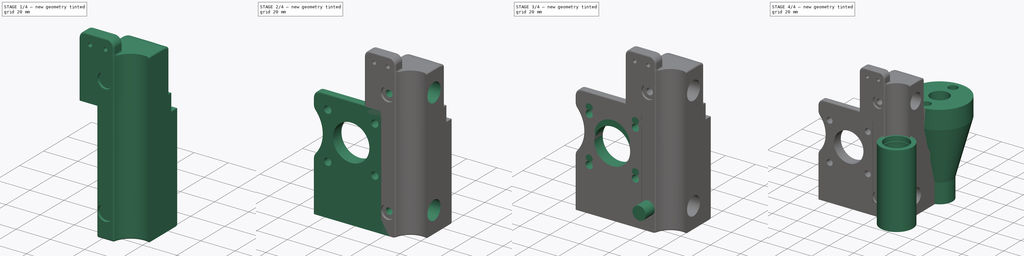
[diagram: build sequence overview — one tinted view per stage of 4, left to right]
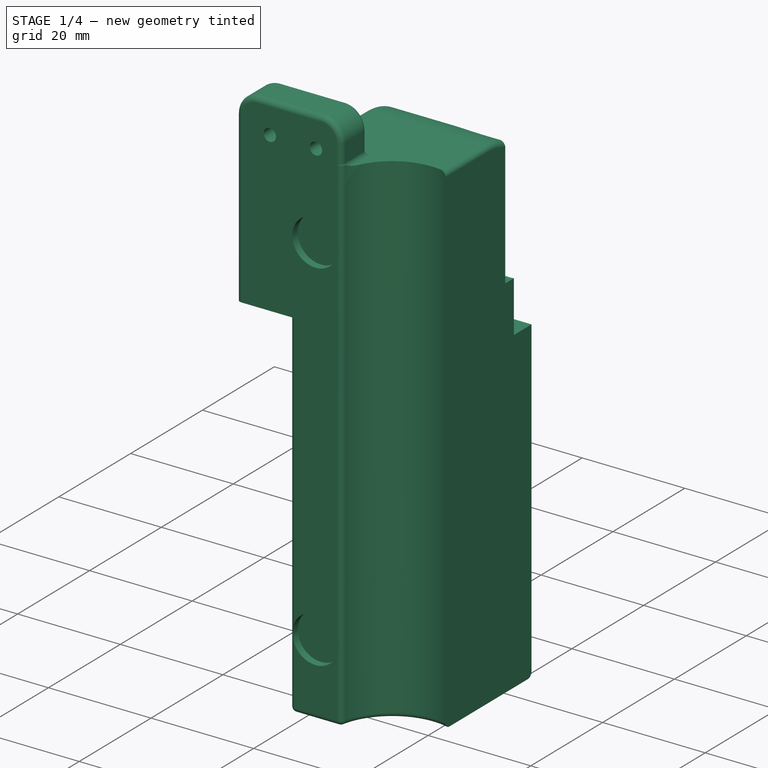
[diagram: stage 1 of 4 — iso view after this stage's code; geometry added in this stage tinted green]
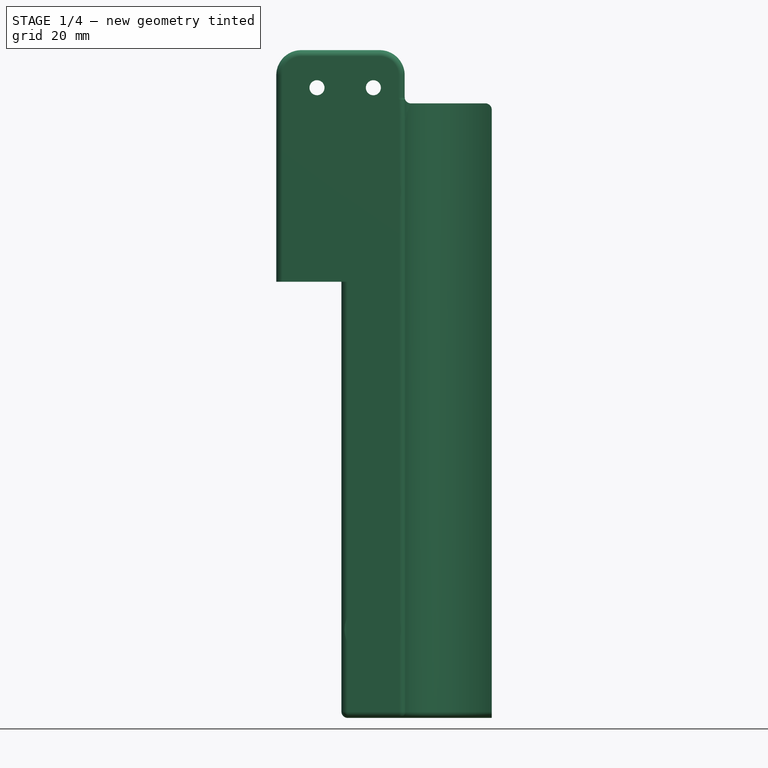
[diagram: stage 1 of 4 — front view after this stage's code; geometry added in this stage tinted green]
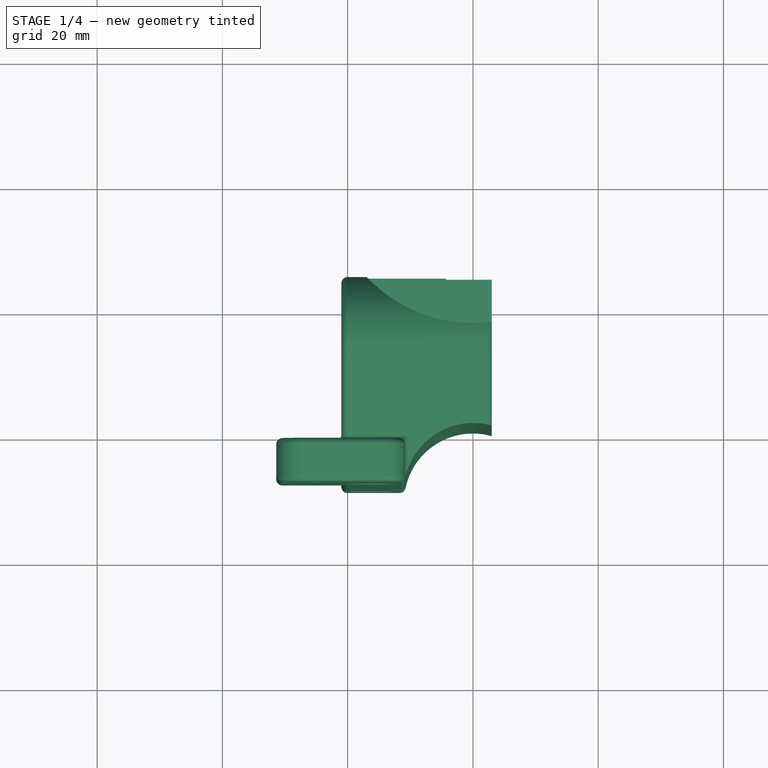
[diagram: stage 1 of 4 — top view after this stage's code; geometry added in this stage tinted green]
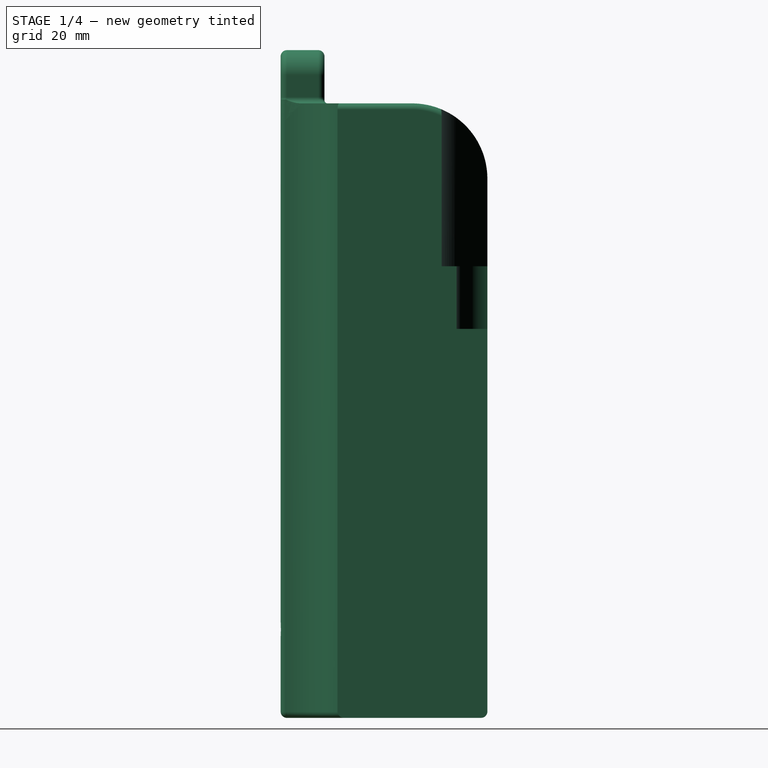
[diagram: stage 1 of 4 — right view after this stage's code; geometry added in this stage tinted green]
FCSTD DOCUMENT  (FreeCAD 0.16R5480 (Git))
Label: z_carriage_motor_v2.10
License: All rights reserved
LicenseURL: http://en.wikipedia.org/wiki/All_rights_reserved
objects: Sketcher::SketchObject×13, PartDesign::Pad×5, Part::FeaturePython×3, PartDesign::Pocket×3, Part::Cut×1
note: 33 computed .brp shape members not serialized (recipe doc carries the construction recipe); baked Part::Feature solids carry a one-line shape summary decoded from their .brp

FEATURE [Part::FeaturePython] carriage_motor_z_01  # a2plus imported part (geometry in sourceFile) (typed FeaturePython)
  Placement = pos=(3,-32,44.1) rot=(0.57735,-0.57735,-0.57735;2.0944rad)
  fixedPosition = false
  sourceFile = <userpath>/shared-j/devel/lulzbot/TAZ/Olive/production_parts/printed_parts/z_carriage_motor/carriage_motor_z.fcstd
  timeLastImport = 1460046477
  updateColors = true
FEATURE [Sketcher::SketchObject] Sketch004
  ExternalGeometry = -> [carriage_motor_z_01]
  Placement = pos=(3,-47,44.1) rot=(0.57735,-0.57735,0.57735;2.0944rad)
  Support = -> carriage_motor_z_01 [Face105]
  sketch-geometry (4):
    g0: Circle CenterX=40 CenterY=19 CenterZ=0 NormalX=0 NormalY=0 NormalZ=1 Radius=3.1
    g1: Circle CenterX=40 CenterY=19 CenterZ=0 NormalX=0 NormalY=0 NormalZ=1 Radius=2.2
    g2: Circle CenterX=-30 CenterY=19 CenterZ=0 NormalX=0 NormalY=0 NormalZ=1 Radius=2.2
    g3: Circle CenterX=-30 CenterY=19 CenterZ=0 NormalX=0 NormalY=0 NormalZ=1 Radius=3.1
  constraints (8):
    c: Coincident(g0,g-3)
    c: Coincident(g1,g0)
    c: Radius(g1) = 2.2
    c: Radius(g0) = 3.1
    c: Coincident(g2,g-4)
    c: Coincident(g3,g2)
    c: Equal(g1,g2)
    c: Equal(g0,g3)
FEATURE [Sketcher::SketchObject] Sketch005
  Placement = pos=(-21,-32,44.1) rot=(0.57735,-0.57735,-0.57735;2.0944rad)
  sketch-geometry (2):
    g0: Circle CenterX=0 CenterY=40 CenterZ=0 NormalX=0 NormalY=0 NormalZ=1 Radius=6.3
    g1: Circle CenterX=0 CenterY=-30 CenterZ=0 NormalX=0 NormalY=0 NormalZ=1 Radius=6.3
  constraints (1):
    c: Equal(g0,g1)
FEATURE [Sketcher::SketchObject] Sketch006
  ExternalGeometry = -> [carriage_motor_z_01]
  Placement = pos=(-21,-32,44.1) rot=(0.57735,-0.57735,-0.57735;2.0944rad)
  Support = -> carriage_motor_z_01 [Face6]
  sketch-geometry (2):
    g0: Circle CenterX=0 CenterY=40 CenterZ=0 NormalX=0 NormalY=0 NormalZ=1 Radius=7
    g1: Circle CenterX=0 CenterY=-30 CenterZ=0 NormalX=0 NormalY=0 NormalZ=1 Radius=7
  constraints (4):
    c: Equal(g1,g0)
    c: Radius(g0) = 7
    c: Coincident(g0,g-3)
    c: Coincident(g1,g-4)
FEATURE [Sketcher::SketchObject] Sketch007
  Placement = pos=(-21,-32,44.1) rot=(0.57735,-0.57735,-0.57735;2.0944rad)
  sketch-geometry (2):
    g0: Circle CenterX=0 CenterY=40 CenterZ=0 NormalX=0 NormalY=0 NormalZ=1 Radius=6.2
    g1: Circle CenterX=0 CenterY=-30 CenterZ=0 NormalX=0 NormalY=0 NormalZ=1 Radius=6.2
  constraints (2):
    c: Equal(g0,g1)
    c: Radius(g0) = 6.2
FEATURE [Sketcher::SketchObject] Sketch008
  Placement = pos=(-21,-32,44.1) rot=(0.57735,-0.57735,-0.57735;2.0944rad)
  Support = -> carriage_motor_z_01 [Face6]
FEATURE [Sketcher::SketchObject] Sketch009
  ExternalGeometry = -> [carriage_motor_z_01]
  Placement = pos=(3,-47,44.1) rot=(-0.57735,0.57735,-0.57735;4.18879rad)
  Support = -> carriage_motor_z_01 [Face105]
  sketch-geometry (2):
    g0: Circle CenterX=40 CenterY=19 CenterZ=0 NormalX=0 NormalY=0 NormalZ=1 Radius=3
    g1: Circle CenterX=-30 CenterY=19 CenterZ=0 NormalX=0 NormalY=0 NormalZ=1 Radius=3
  constraints (4):
    c: Coincident(g1,g-4)
    c: Coincident(g0,g-3)
    c: Radius(g0) = 3
    c: Equal(g0,g1)
FEATURE [PartDesign::Pad] Pad003
  Length = 10
  Length2 = 100
  Placement = pos=(3,-32,44.1) rot=(0.57735,-0.57735,-0.57735;2.0944rad)
  Reversed = true
  Sketch = -> Sketch009
  Type = 0
FEATURE [Sketcher::SketchObject] Sketch010
  ExternalGeometry = -> [Pad003]
  Placement = pos=(-21,-32,44.1) rot=(0.57735,-0.57735,-0.57735;2.0944rad)
  Support = -> Pad003 [Face6]
  sketch-geometry (2):
    g0: Circle CenterX=0 CenterY=-30 CenterZ=0 NormalX=0 NormalY=0 NormalZ=1 Radius=7
    g1: Circle CenterX=0 CenterY=40 CenterZ=0 NormalX=0 NormalY=0 NormalZ=1 Radius=7
  constraints (4):
    c: Coincident(g0,g-4)
    c: Coincident(g1,g-3)
    c: Radius(g1) = 7
    c: Equal(g0,g1)
FEATURE [PartDesign::Pad] Pad004
  Length = 24
  Length2 = 100
  Placement = pos=(3,-32,44.1) rot=(0.57735,-0.57735,-0.57735;2.0944rad)
  Reversed = true
  Sketch = -> Sketch010
  Type = 0
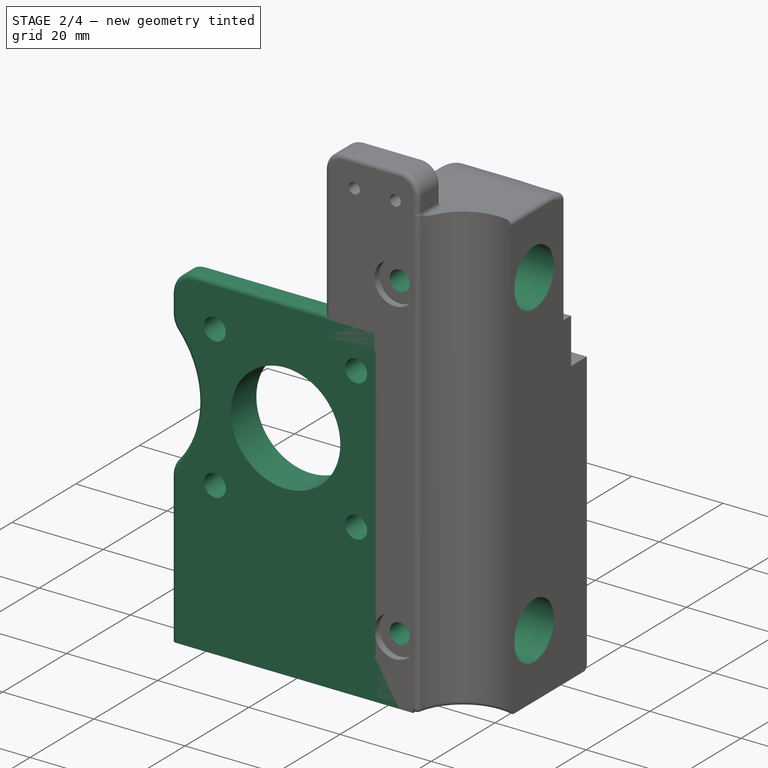
[diagram: stage 2 of 4 — iso view after this stage's code; geometry added in this stage tinted green]
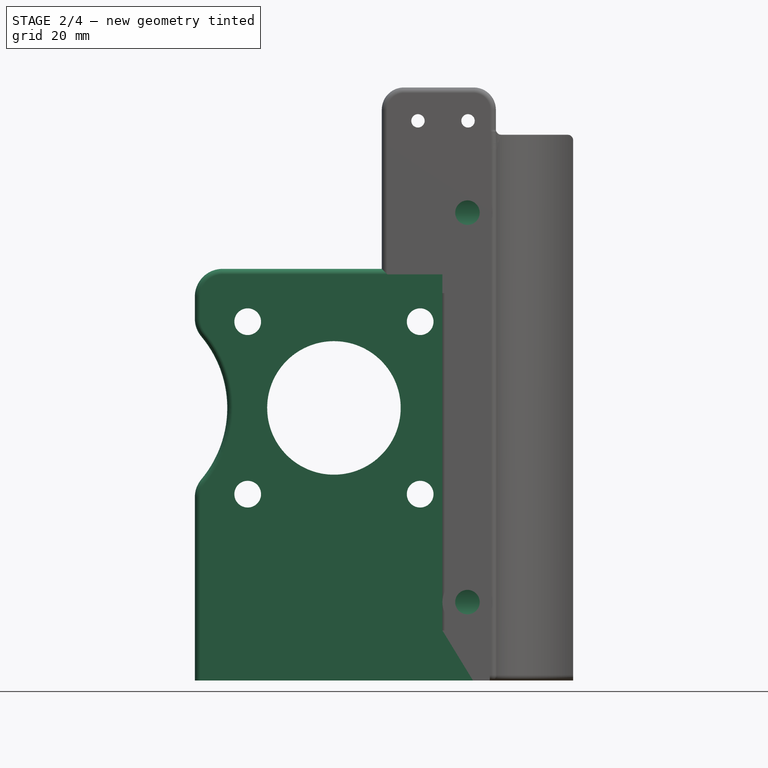
[diagram: stage 2 of 4 — front view after this stage's code; geometry added in this stage tinted green]
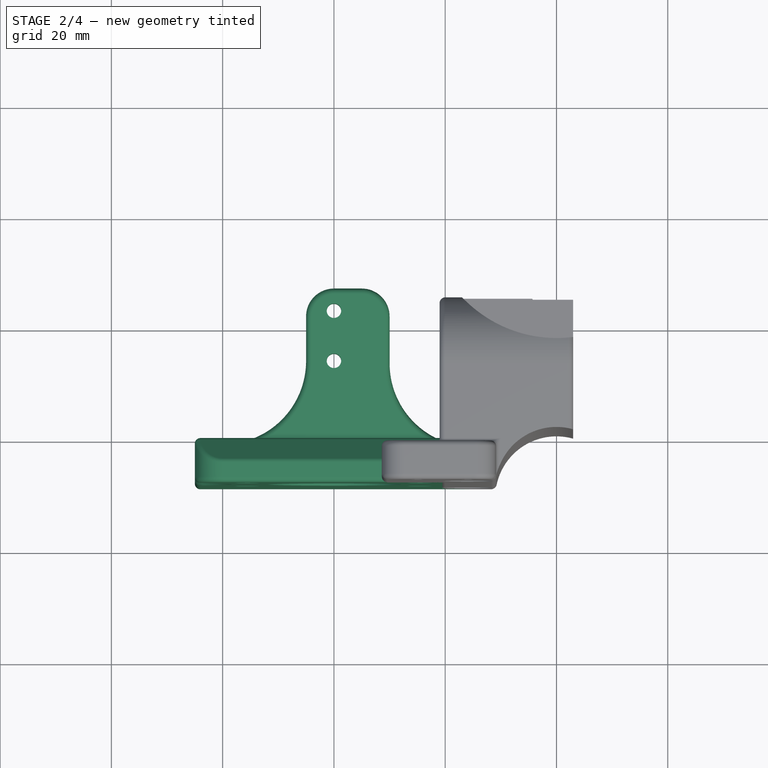
[diagram: stage 2 of 4 — top view after this stage's code; geometry added in this stage tinted green]
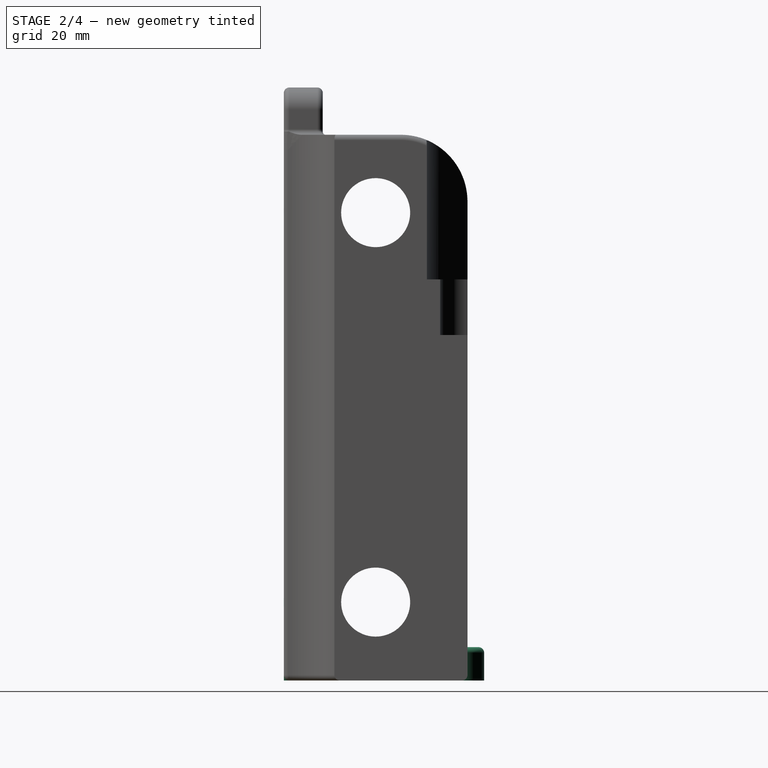
[diagram: stage 2 of 4 — right view after this stage's code; geometry added in this stage tinted green]
FEATURE [Part::FeaturePython] carriage_motor_mount_olive_01  # a2plus imported part (geometry in sourceFile) (typed FeaturePython)
  Placement = pos=(-40,-48.5,49) rot=(0.57735,0.57735,0.57735;4.18879rad)
  fixedPosition = false
  sourceFile = <userpath>/shared-j/devel/lulzbot/TAZ/Olive/production_parts/printed_parts/z_carriage_motor/carriage_motor_mount_olive.fcstd
  timeLastImport = 1458587576
  updateColors = true
FEATURE [Sketcher::SketchObject] Sketch012
  ExternalGeometry = -> [Pad004]
  Placement = pos=(-21,-32,44.1) rot=(0.57735,-0.57735,-0.57735;2.0944rad)
  Support = -> Pad004 [Face6]
  sketch-geometry (2):
    g0: Circle CenterX=0 CenterY=40 CenterZ=0 NormalX=0 NormalY=0 NormalZ=1 Radius=6.2
    g1: Circle CenterX=0 CenterY=-30 CenterZ=0 NormalX=0 NormalY=0 NormalZ=1 Radius=6.2
  constraints (4):
    c: Coincident(g0,g-4)
    c: Coincident(g1,g-3)
    c: Radius(g0) = 6.2
    c: Equal(g1,g0)
FEATURE [PartDesign::Pocket] Pocket001
  Length = 25
  Placement = pos=(3,-32,44.1) rot=(0.57735,-0.57735,-0.57735;2.0944rad)
  Sketch = -> Sketch012
  Type = 0
FEATURE [Sketcher::SketchObject] Sketch013
  ExternalGeometry = -> [Pocket001]
  Placement = pos=(3,-47,44.1) rot=(0.57735,-0.57735,0.57735;2.0944rad)
  Support = -> Pocket001 [Face126]
  sketch-geometry (2):
    g0: Circle CenterX=-30 CenterY=19 CenterZ=0 NormalX=0 NormalY=0 NormalZ=1 Radius=2.2
    g1: Circle CenterX=40 CenterY=19 CenterZ=0 NormalX=0 NormalY=0 NormalZ=1 Radius=2.2
  constraints (4):
    c: Coincident(g0,g-3)
    c: Coincident(g1,g-4)
    c: Radius(g1) = 2.2
    c: Equal(g1,g0)
FEATURE [PartDesign::Pocket] Pocket002
  Length = 10
  Placement = pos=(3,-32,44.1) rot=(0.57735,-0.57735,-0.57735;2.0944rad)
  Sketch = -> Sketch013
  Type = 0
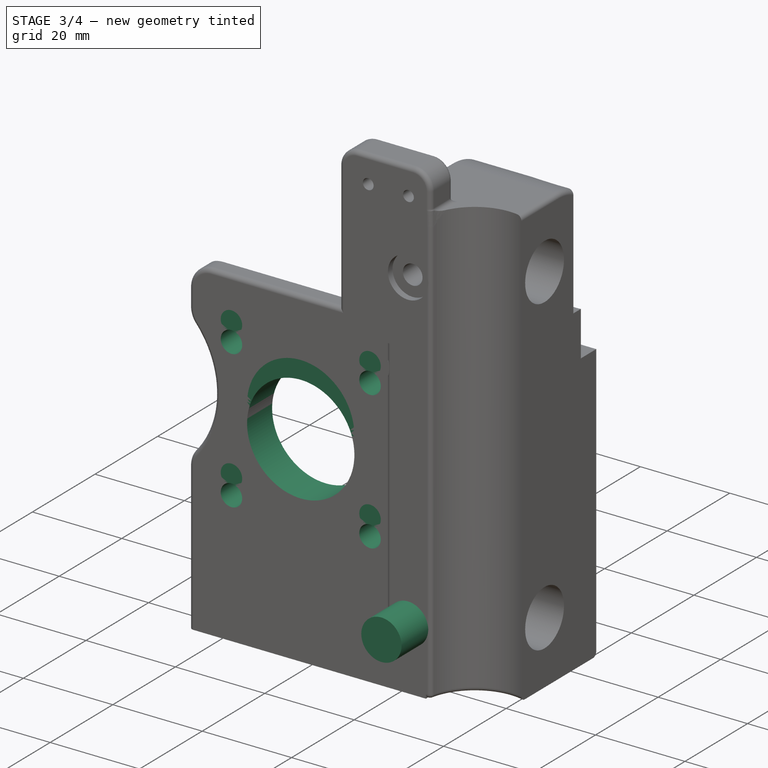
[diagram: stage 3 of 4 — iso view after this stage's code; geometry added in this stage tinted green]
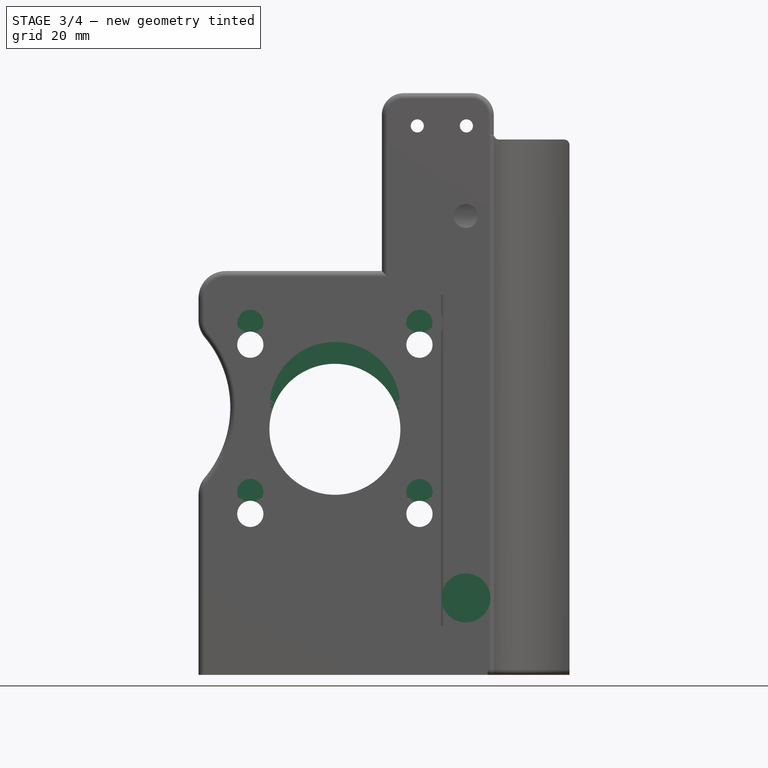
[diagram: stage 3 of 4 — front view after this stage's code; geometry added in this stage tinted green]
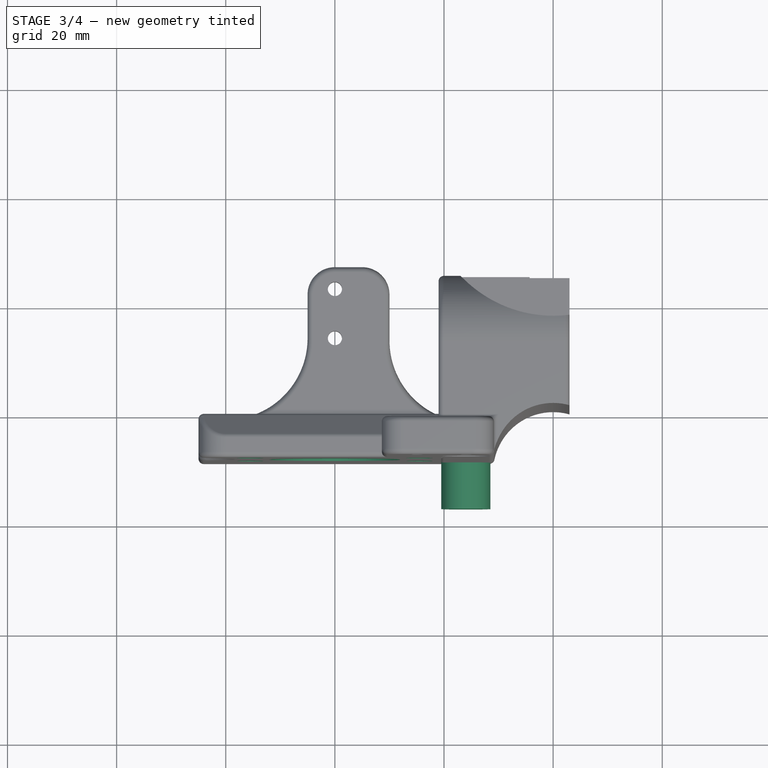
[diagram: stage 3 of 4 — top view after this stage's code; geometry added in this stage tinted green]
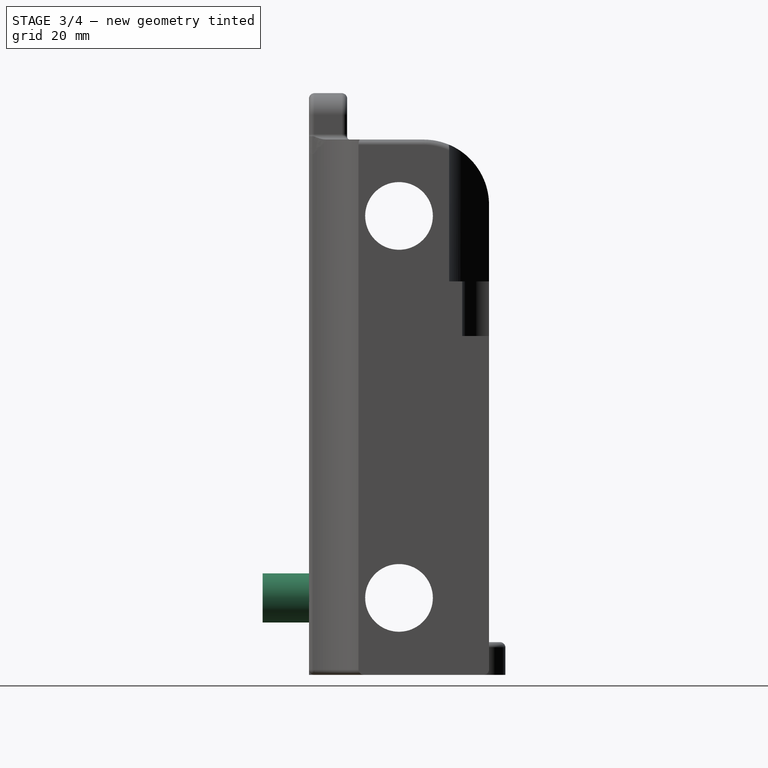
[diagram: stage 3 of 4 — right view after this stage's code; geometry added in this stage tinted green]
FEATURE [Sketcher::SketchObject] Sketch
  Placement = pos=(0,-47,0) rot=(1,0,0;1.5708rad)
  sketch-geometry (1):
    g0: Circle CenterX=-16 CenterY=14.1 CenterZ=0 NormalX=0 NormalY=0 NormalZ=1 Radius=4.5
FEATURE [PartDesign::Pad] Pad
  Length = 10
  Length2 = 100
  Placement = pos=(0,-47,0) rot=(1,0,0;1.5708rad)
  Sketch = -> Sketch
  Type = 0
FEATURE [Sketcher::SketchObject] Sketch002
  ExternalGeometry = -> [carriage_motor_mount_olive_01]
  Placement = pos=(-40,-48.5,49) rot=(0.57735,-0.57735,0.57735;2.0944rad)
  Support = -> carriage_motor_mount_olive_01 [Face6]
  sketch-geometry (5):
    g0: Circle CenterX=0 CenterY=0 CenterZ=0 NormalX=0 NormalY=0 NormalZ=1 Radius=13
    g1: Circle CenterX=-15.5 CenterY=15.5 CenterZ=0 NormalX=0 NormalY=0 NormalZ=1 Radius=3
    g2: Circle CenterX=15.5 CenterY=15.5 CenterZ=0 NormalX=0 NormalY=0 NormalZ=1 Radius=3
    g3: Circle CenterX=15.5 CenterY=-15.5 CenterZ=0 NormalX=0 NormalY=0 NormalZ=1 Radius=4.31761
    g4: Circle CenterX=-15.5 CenterY=-15.5 CenterZ=0 NormalX=0 NormalY=0 NormalZ=1 Radius=3
  constraints (9):
    c: Coincident(g0,g-3)
    c: Coincident(g2,g-5)
    c: Coincident(g1,g-4)
    c: Coincident(g3,g-6)
    c: Coincident(g4,g-7)
    c: Radius(g0) = 13
    c: Radius(g1) = 3
    c: Equal(g1,g2)
    c: Equal(g2,g4)
FEATURE [PartDesign::Pad] Pad002
  Length = 8
  Length2 = 100
  Placement = pos=(-40,-48.5,49) rot=(0.57735,0.57735,0.57735;4.18879rad)
  Reversed = true
  Sketch = -> Sketch002
  Type = 0
FEATURE [Sketcher::SketchObject] Sketch003
  ExternalGeometry = -> [Pad002]
  Placement = pos=(-40,-48.5,49) rot=(0.57735,-0.57735,0.57735;2.0944rad)
  Support = -> Pad002 [Face6]
  sketch-geometry (9):
    g0: Circle CenterX=-4 CenterY=0 CenterZ=0 NormalX=0 NormalY=0 NormalZ=1 Radius=12
    g1: LineSegment [constr] StartX=-19.5 StartY=15.5 StartZ=0 EndX=11.5 EndY=15.5 EndZ=0
    g2: LineSegment [constr] StartX=11.5 StartY=15.5 StartZ=0 EndX=11.5 EndY=-15.5 EndZ=0
    g3: LineSegment [constr] StartX=11.5 StartY=-15.5 StartZ=0 EndX=-19.5 EndY=-15.5 EndZ=0
    g4: LineSegment [constr] StartX=-19.5 StartY=-15.5 StartZ=0 EndX=-19.5 EndY=15.5 EndZ=0
    g5: Circle CenterX=-19.5 CenterY=15.5 CenterZ=0 NormalX=0 NormalY=0 NormalZ=1 Radius=2.4
    g6: Circle CenterX=-19.5 CenterY=-15.5 CenterZ=0 NormalX=0 NormalY=0 NormalZ=1 Radius=2.4
    g7: Circle CenterX=11.5 CenterY=15.5 CenterZ=0 NormalX=0 NormalY=0 NormalZ=1 Radius=2.4
    g8: Circle CenterX=11.5 CenterY=-15.5 CenterZ=0 NormalX=0 NormalY=0 NormalZ=1 Radius=2.4
  constraints (23):
    c: PointOnObject(g0,g-1)
    c: DistanceX(g-1,g0) = -4
    c: Equal(g-3,g0)
    c: Coincident(g1,g2)
    c: Coincident(g2,g3)
    c: Coincident(g3,g4)
    c: Coincident(g4,g1)
    c: Horizontal(g1)
    c: Horizontal(g3)
    c: Vertical(g2)
    c: Vertical(g4)
    c: DistanceX(g1,g-4) = 4
    c: PointOnObject(g-4,g1)
    c: DistanceX(g1,g-5) = 4
    c: PointOnObject(g-7,g3)
    c: Coincident(g7,g1)
    c: Coincident(g8,g2)
    c: Equal(g8,g-7)
    c: Equal(g8,g6)
    c: Equal(g6,g5)
    c: Equal(g5,g7)
    c: Coincident(g3,g6)
    c: Coincident(g1,g5)
FEATURE [PartDesign::Pocket] Pocket
  Length = 11
  Placement = pos=(-40,-48.5,49) rot=(0.57735,0.57735,0.57735;4.18879rad)
  Sketch = -> Sketch003
  Type = 0
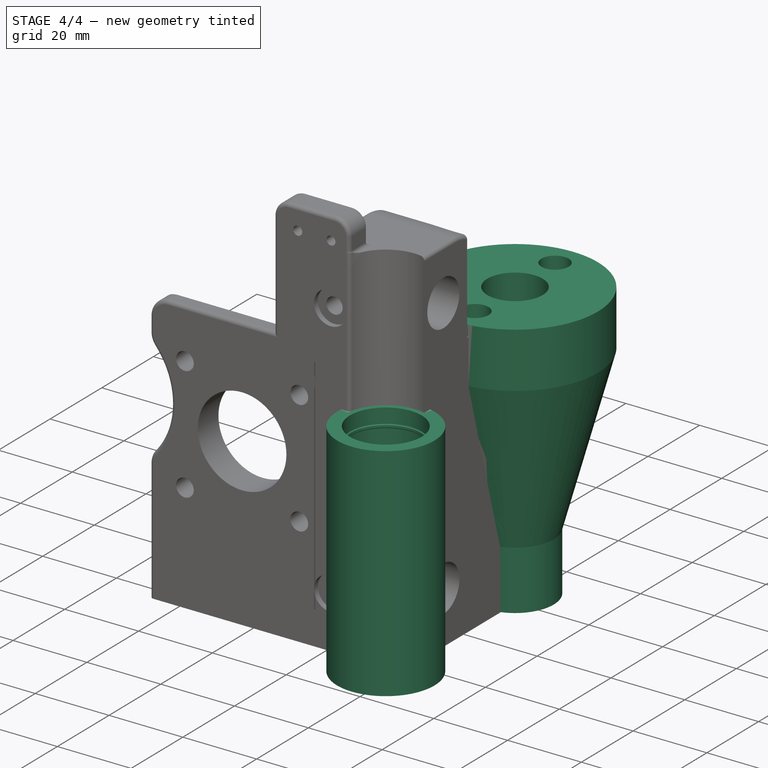
[diagram: stage 4 of 4 — iso view after this stage's code; geometry added in this stage tinted green]
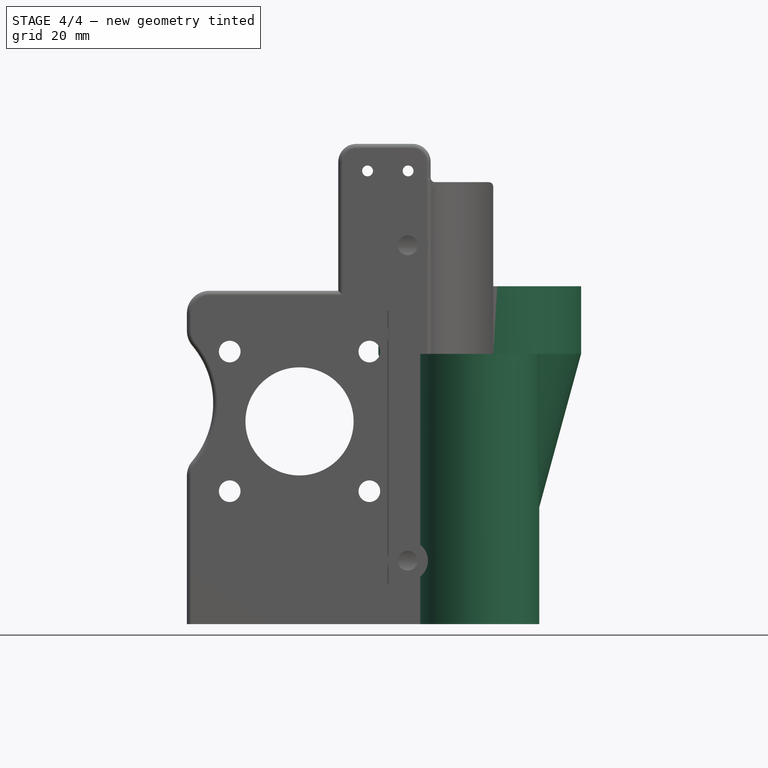
[diagram: stage 4 of 4 — front view after this stage's code; geometry added in this stage tinted green]
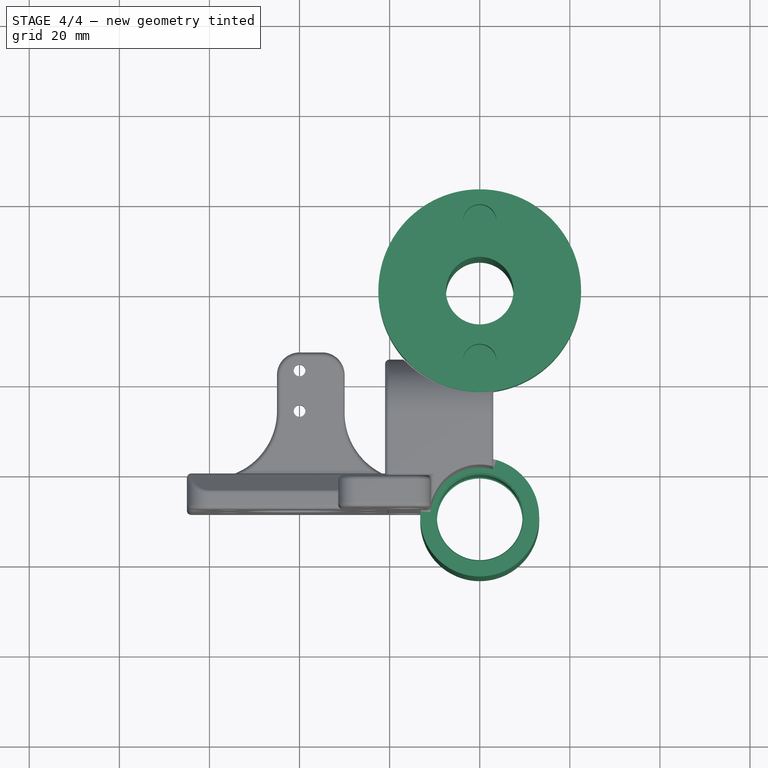
[diagram: stage 4 of 4 — top view after this stage's code; geometry added in this stage tinted green]
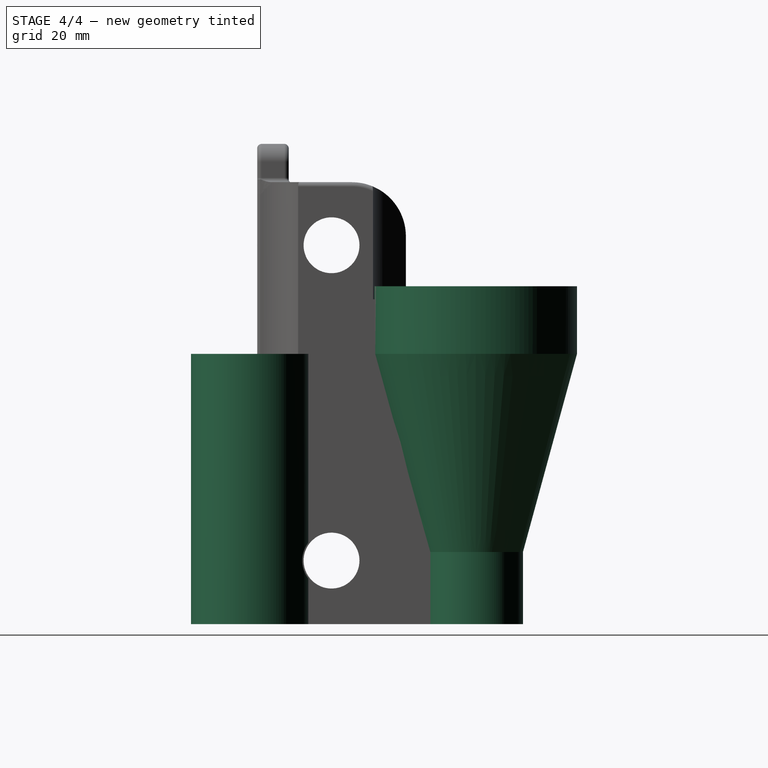
[diagram: stage 4 of 4 — right view after this stage's code; geometry added in this stage tinted green]
FEATURE [Part::FeaturePython] carriage_base_olive_01  # a2plus imported part (geometry in sourceFile) (typed FeaturePython)
  Placement = pos=(0,0,0) rot=(1,0,0;1.5708rad)
  fixedPosition = false
  sourceFile = <userpath>/shared-j/devel/lulzbot/TAZ/Olive/production_parts/printed_parts/z_carriage_idler/carriage_base_olive.fcstd
  timeLastImport = 1460043793
  updateColors = true
FEATURE [Part::Cut] Cut
  Base = -> carriage_base_olive_01
  Tool = -> Pad
FEATURE [Sketcher::SketchObject] Sketch001
  ExternalGeometry = -> [Cut]
  Placement = pos=(0,0,75) rot=(0,0,1;0rad)
  Support = -> Cut [Face33]
  sketch-geometry (4):
    g0: Circle CenterX=0 CenterY=15.5 CenterZ=0 NormalX=0 NormalY=0 NormalZ=1 Radius=6
    g1: Circle CenterX=0 CenterY=15.5 CenterZ=0 NormalX=0 NormalY=0 NormalZ=1 Radius=3.7
    g2: Circle CenterX=0 CenterY=-15.5 CenterZ=0 NormalX=0 NormalY=0 NormalZ=1 Radius=3.7
    g3: Circle CenterX=0 CenterY=-15.5 CenterZ=0 NormalX=0 NormalY=0 NormalZ=1 Radius=6
  constraints (8):
    c: Coincident(g2,g3)
    c: Coincident(g2,g-4)
    c: Coincident(g0,g1)
    c: Coincident(g0,g-3)
    c: Equal(g1,g2)
    c: Radius(g1) = 3.7
    c: Equal(g3,g0)
    c: Radius(g0) = 6
FEATURE [PartDesign::Pad] Pad001
  Length = 15
  Length2 = 100
  Reversed = true
  Sketch = -> Sketch001
  Type = 0
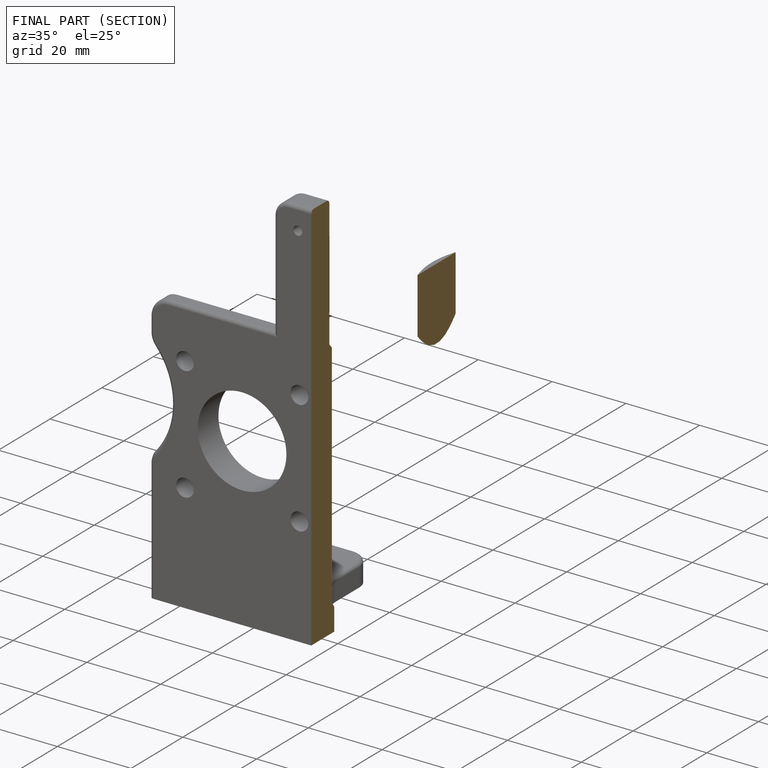
[diagram: finished part — half-section view (interior)]
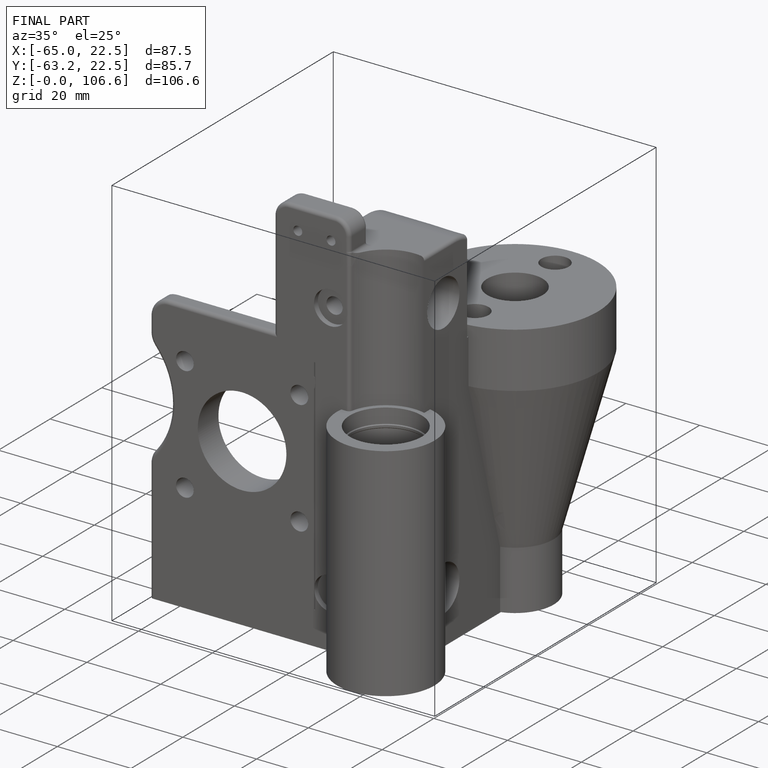
[diagram: finished part — iso view with bounding-box wireframe]
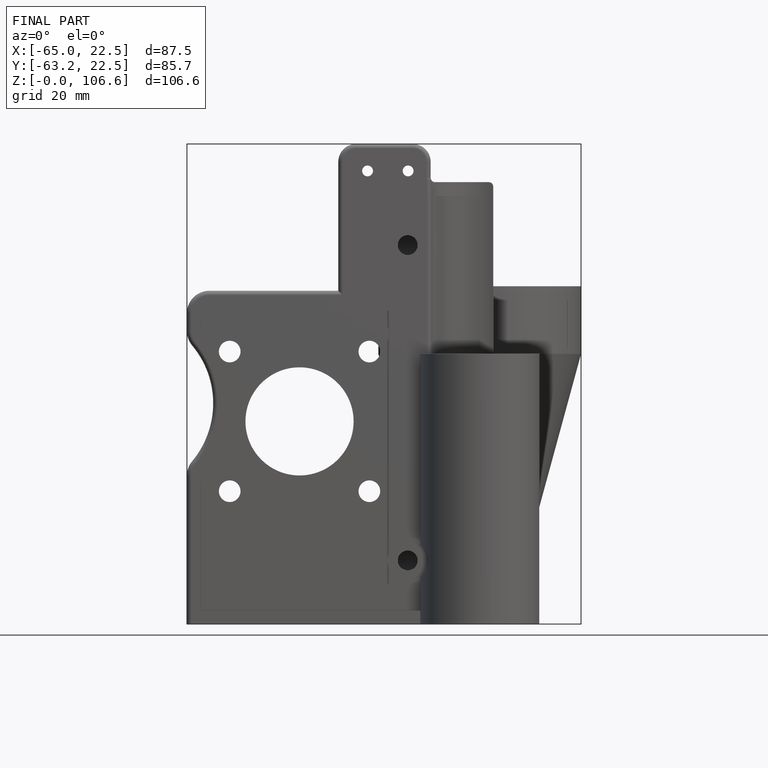
[diagram: finished part — front view with bounding-box wireframe]
